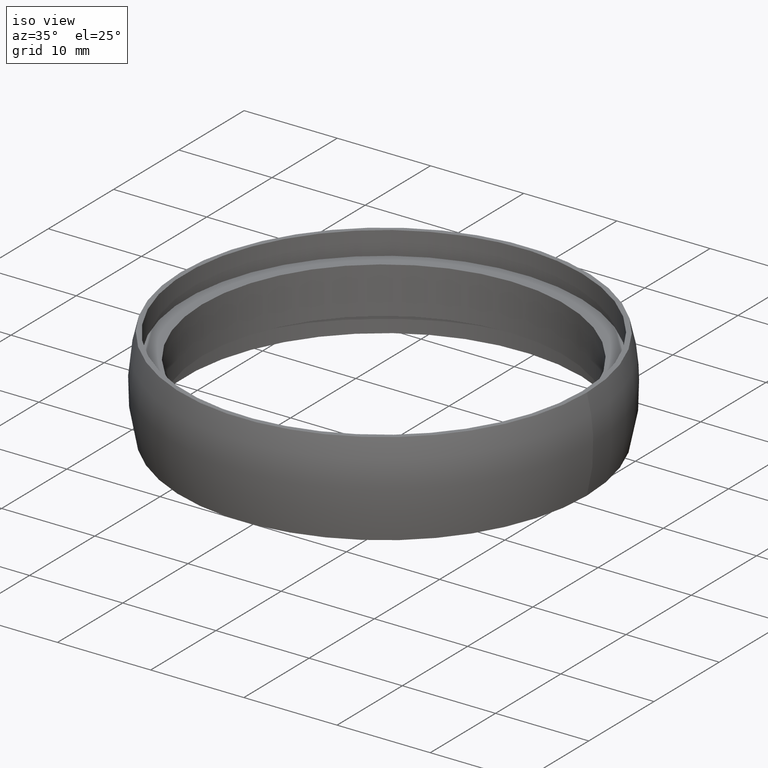
[diagram: clean part render]
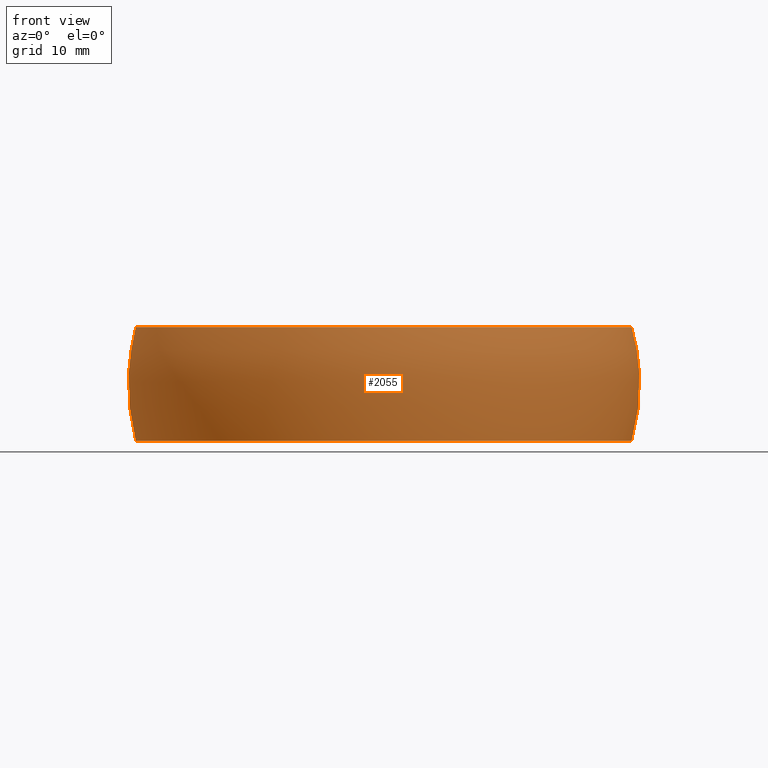
[diagram: tour spotlight — one face highlighted and labeled with its STEP entity id]
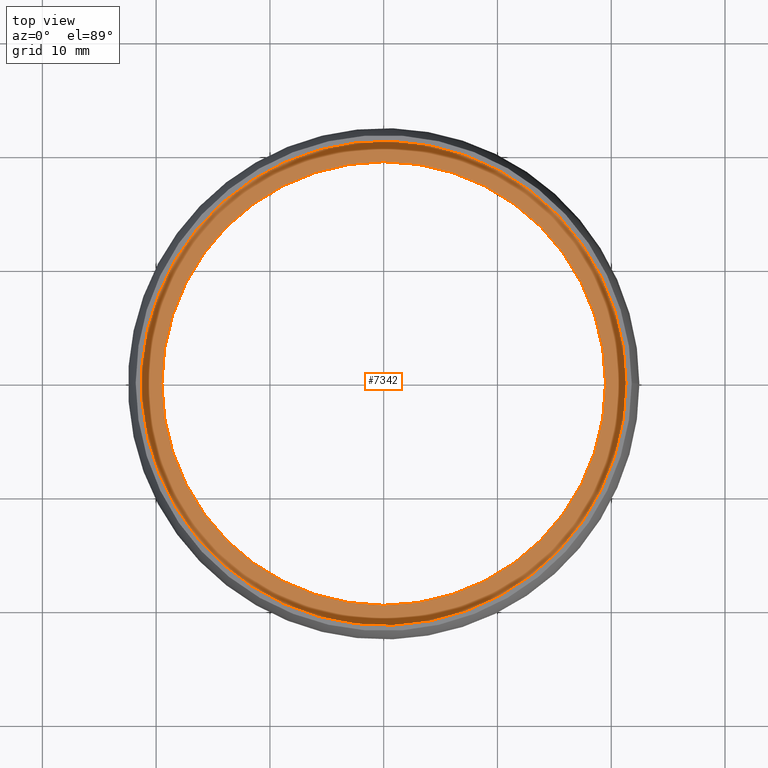
[diagram: tour spotlight — one face highlighted and labeled with its STEP entity id]
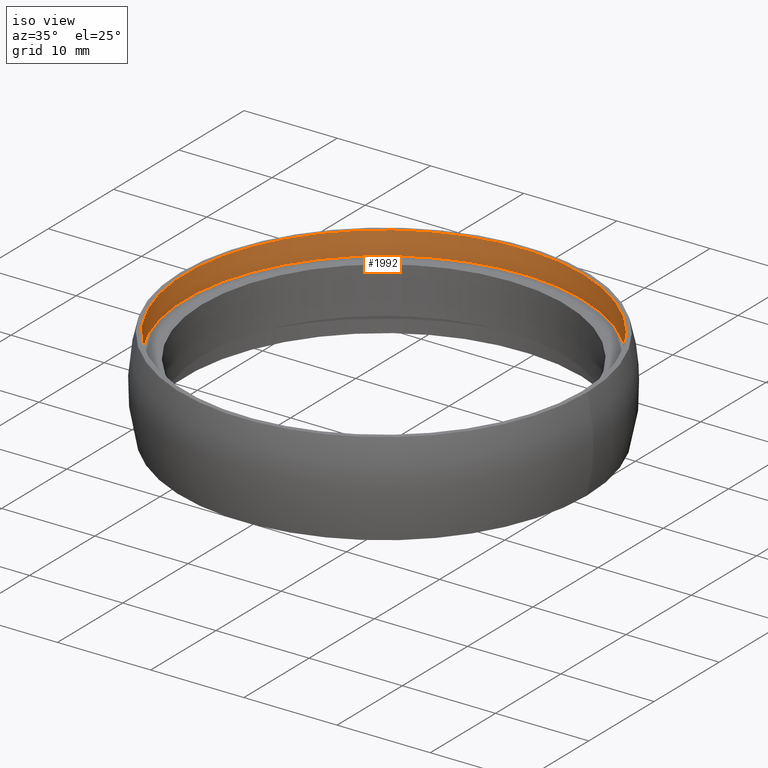
[diagram: tour spotlight — one face highlighted and labeled with its STEP entity id]
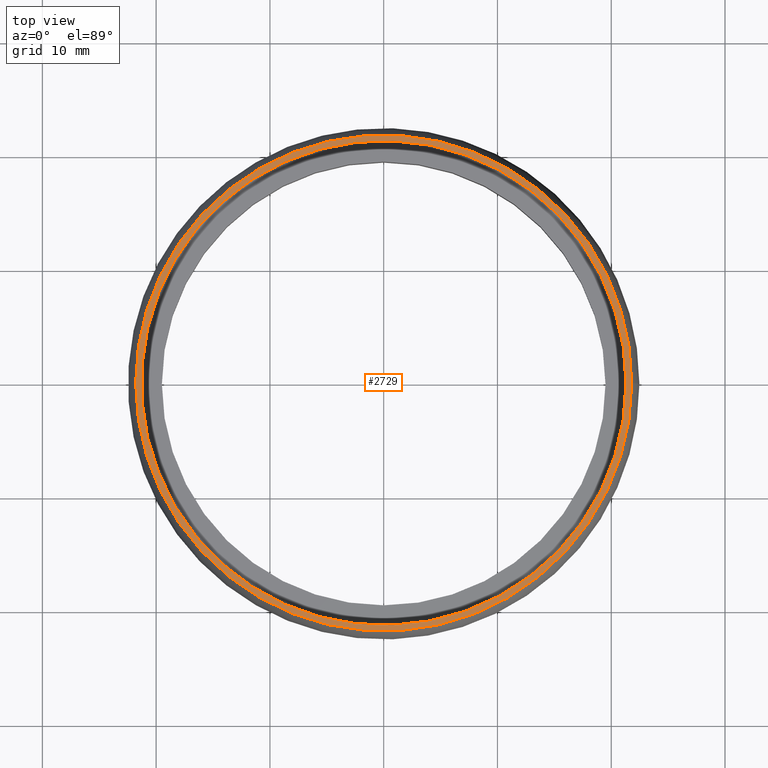
[diagram: tour spotlight — one face highlighted and labeled with its STEP entity id]
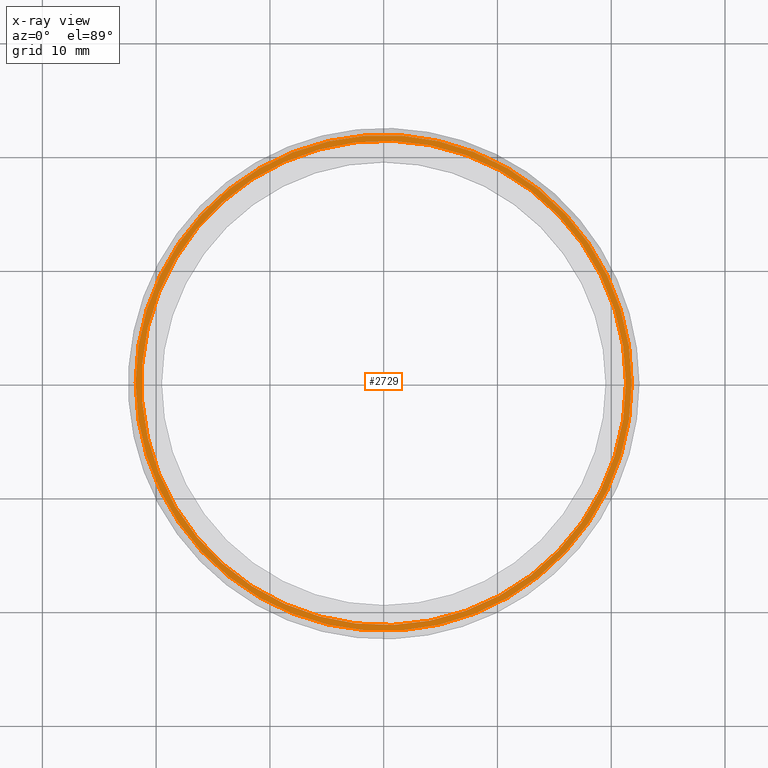
[diagram: x-ray of the same camera — body ghosted, this tour face saturated]
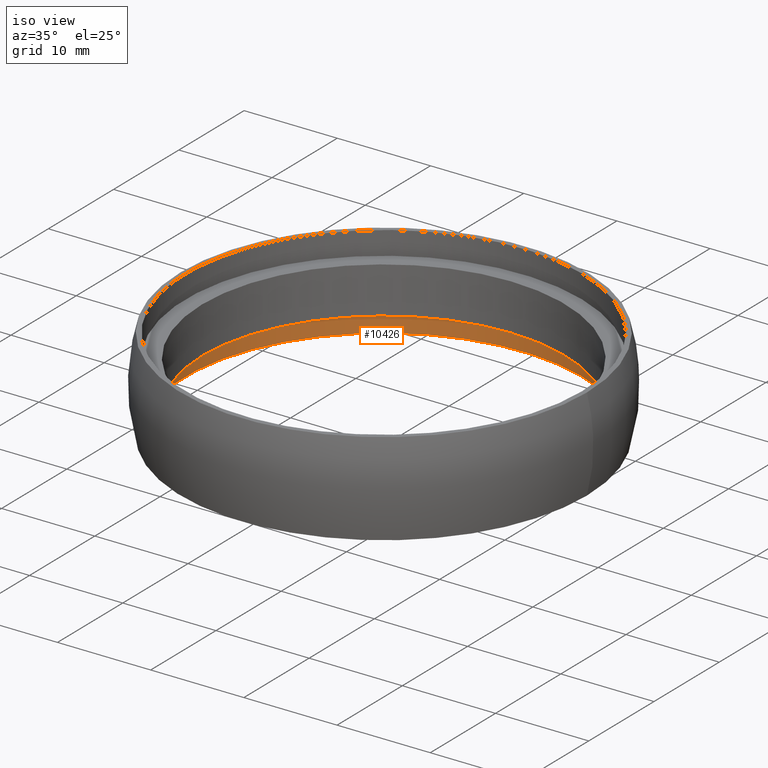
[diagram: tour spotlight — one face highlighted and labeled with its STEP entity id]
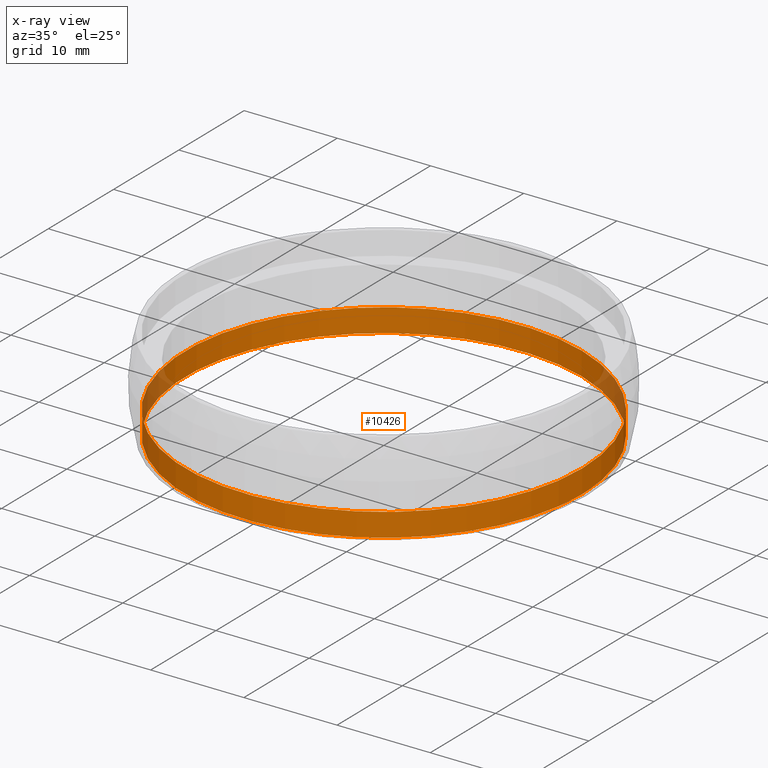
[diagram: x-ray of the same camera — body ghosted, this tour face saturated]
A machine part: a face-by-face anatomy tour. The part has 267 B-rep faces; the first image is the clean iso view, then the 5 largest visible faces are spotlighted one at a time (largest first), each with its STEP entity span.

Face 1 — front view, entity #2055. In plain terms, the highlighted toroidal blend (fillet) surface has major radius 4.2929 mm and minor (blend) radius 18.2071 mm.
Definition (entity closure, byte-faithful):
#222 = VERTEX_POINT ( 'NONE', #1520 ) ;
#308 = TOROIDAL_SURFACE ( 'NONE', #5819, 4.292857142857122300, 18.20714285714287700 ) ;
#777 = CIRCLE ( 'NONE', #1718, 21.80000000000000100 ) ;
#1006 = DIRECTION ( 'NONE',  ( -0.0000000000000000000, -0.0000000000000000000, 1.000000000000000000 ) ) ;
#1520 = CARTESIAN_POINT ( 'NONE',  ( 21.80000000000000100, 0.0000000000000000000, 5.000000000000000900 ) ) ;
#1558 = CARTESIAN_POINT ( 'NONE',  ( 21.80000000000000100, 0.0000000000000000000, -5.000000000000000000 ) ) ;
#1718 = AXIS2_PLACEMENT_3D ( 'NONE', #3808, #1006, #4728 ) ;
#1818 = DIRECTION ( 'NONE',  ( 1.000000000000000000, 0.0000000000000000000, 0.0000000000000000000 ) ) ;
#2055 = ADVANCED_FACE ( 'NONE', ( #11576, #8915 ), #308, .T. ) ;
#3520 = DIRECTION ( 'NONE',  ( -0.0000000000000000000, -0.0000000000000000000, 1.000000000000000000 ) ) ;
#3808 = CARTESIAN_POINT ( 'NONE',  ( 0.0000000000000000000, 0.0000000000000000000, 5.000000000000000900 ) ) ;
#4079 = CIRCLE ( 'NONE', #11352, 21.80000000000000100 ) ;
#4728 = DIRECTION ( 'NONE',  ( 1.000000000000000000, 0.0000000000000000000, 0.0000000000000000000 ) ) ;
#5734 = EDGE_CURVE ( 'NONE', #11357, #11357, #4079, .T. ) ;
#5819 = AXIS2_PLACEMENT_3D ( 'NONE', #7914, #3520, #10768 ) ;
#6187 = DIRECTION ( 'NONE',  ( -0.0000000000000000000, -0.0000000000000000000, 1.000000000000000000 ) ) ;
#7245 = CARTESIAN_POINT ( 'NONE',  ( 0.0000000000000000000, 0.0000000000000000000, -5.000000000000000000 ) ) ;
#7914 = CARTESIAN_POINT ( 'NONE',  ( 0.0000000000000000000, 0.0000000000000000000, 0.0000000000000000000 ) ) ;
#8507 = EDGE_LOOP ( 'NONE', ( #10063 ) ) ;
#8915 = FACE_OUTER_BOUND ( 'NONE', #11132, .T. ) ;
#9384 = ORIENTED_EDGE ( 'NONE', *, *, #5734, .T. ) ;
#10063 = ORIENTED_EDGE ( 'NONE', *, *, #10605, .F. ) ;
#10605 = EDGE_CURVE ( 'NONE', #222, #222, #777, .T. ) ;
#10768 = DIRECTION ( 'NONE',  ( 1.000000000000000000, 0.0000000000000000000, 0.0000000000000000000 ) ) ;
#11132 = EDGE_LOOP ( 'NONE', ( #9384 ) ) ;
#11352 = AXIS2_PLACEMENT_3D ( 'NONE', #7245, #6187, #1818 ) ;
#11357 = VERTEX_POINT ( 'NONE', #1558 ) ;
#11576 = FACE_OUTER_BOUND ( 'NONE', #8507, .T. ) ;

Face 2 — top view, entity #7342. In plain terms, the highlighted planar face has unit normal (0, 0, -1).
Definition (entity closure, byte-faithful):
#545 = FACE_BOUND ( 'NONE', #7876, .T. ) ;
#906 = DIRECTION ( 'NONE',  ( 1.000000000000000000, 0.0000000000000000000, 0.0000000000000000000 ) ) ;
#2817 = DIRECTION ( 'NONE',  ( -1.000000000000000000, 0.0000000000000000000, -0.0000000000000000000 ) ) ;
#3045 = CARTESIAN_POINT ( 'NONE',  ( 0.0000000000000000000, 21.30000000000000100, 2.500000000000000400 ) ) ;
#3473 = DIRECTION ( 'NONE',  ( 1.000000000000000000, 0.0000000000000000000, 0.0000000000000000000 ) ) ;
#3605 = VERTEX_POINT ( 'NONE', #9694 ) ;
#3906 = CIRCLE ( 'NONE', #10023, 21.30000000000000100 ) ;
#4577 = ORIENTED_EDGE ( 'NONE', *, *, #7976, .T. ) ;
#5106 = ORIENTED_EDGE ( 'NONE', *, *, #6949, .F. ) ;
#5444 = CARTESIAN_POINT ( 'NONE',  ( 0.0000000000000000000, 0.0000000000000000000, 2.500000000000000400 ) ) ;
#6279 = DIRECTION ( 'NONE',  ( -0.0000000000000000000, -0.0000000000000000000, 1.000000000000000000 ) ) ;
#6949 = EDGE_CURVE ( 'NONE', #3605, #3605, #11254, .T. ) ;
#7020 = FACE_OUTER_BOUND ( 'NONE', #7561, .T. ) ;
#7342 = ADVANCED_FACE ( 'NONE', ( #545, #7020 ), #10414, .F. ) ;
#7439 = AXIS2_PLACEMENT_3D ( 'NONE', #3045, #8227, #2817 ) ;
#7561 = EDGE_LOOP ( 'NONE', ( #4577 ) ) ;
#7766 = CARTESIAN_POINT ( 'NONE',  ( 21.30000000000000100, 0.0000000000000000000, 2.500000000000000400 ) ) ;
#7876 = EDGE_LOOP ( 'NONE', ( #5106 ) ) ;
#7976 = EDGE_CURVE ( 'NONE', #9827, #9827, #3906, .T. ) ;
#8227 = DIRECTION ( 'NONE',  ( 0.0000000000000000000, 0.0000000000000000000, -1.000000000000000000 ) ) ;
#9630 = DIRECTION ( 'NONE',  ( -0.0000000000000000000, -0.0000000000000000000, 1.000000000000000000 ) ) ;
#9694 = CARTESIAN_POINT ( 'NONE',  ( 19.50000000000000000, 0.0000000000000000000, 2.500000000000000000 ) ) ;
#9715 = AXIS2_PLACEMENT_3D ( 'NONE', #11697, #9630, #906 ) ;
#9827 = VERTEX_POINT ( 'NONE', #7766 ) ;
#10023 = AXIS2_PLACEMENT_3D ( 'NONE', #5444, #6279, #3473 ) ;
#10414 = PLANE ( 'NONE',  #7439 ) ;
#11254 = CIRCLE ( 'NONE', #9715, 19.50000000000000000 ) ;
#11697 = CARTESIAN_POINT ( 'NONE',  ( 0.0000000000000000000, 0.0000000000000000000, 2.500000000000000000 ) ) ;

Face 3 — iso view, entity #1992. In plain terms, the highlighted cylindrical surface (bore or boss wall) has radius 21.3 mm, axis along (-0, -0, 1).
Definition (entity closure, byte-faithful):
#1633 = VERTEX_POINT ( 'NONE', #5034 ) ;
#1992 = ADVANCED_FACE ( 'NONE', ( #4685, #9490 ), #7210, .F. ) ;
#3407 = EDGE_LOOP ( 'NONE', ( #4991 ) ) ;
#3473 = DIRECTION ( 'NONE',  ( 1.000000000000000000, 0.0000000000000000000, 0.0000000000000000000 ) ) ;
#3620 = AXIS2_PLACEMENT_3D ( 'NONE', #6909, #6206, #10612 ) ;
#3906 = CIRCLE ( 'NONE', #10023, 21.30000000000000100 ) ;
#4685 = FACE_OUTER_BOUND ( 'NONE', #3407, .T. ) ;
#4991 = ORIENTED_EDGE ( 'NONE', *, *, #7976, .F. ) ;
#5034 = CARTESIAN_POINT ( 'NONE',  ( 21.30000000000000100, 0.0000000000000000000, 5.000000000000000000 ) ) ;
#5444 = CARTESIAN_POINT ( 'NONE',  ( 0.0000000000000000000, 0.0000000000000000000, 2.500000000000000400 ) ) ;
#6206 = DIRECTION ( 'NONE',  ( -0.0000000000000000000, -0.0000000000000000000, 1.000000000000000000 ) ) ;
#6279 = DIRECTION ( 'NONE',  ( -0.0000000000000000000, -0.0000000000000000000, 1.000000000000000000 ) ) ;
#6909 = CARTESIAN_POINT ( 'NONE',  ( 0.0000000000000000000, 0.0000000000000000000, 0.0000000000000000000 ) ) ;
#7210 = CYLINDRICAL_SURFACE ( 'NONE', #3620, 21.30000000000000100 ) ;
#7457 = CIRCLE ( 'NONE', #10695, 21.30000000000000100 ) ;
#7766 = CARTESIAN_POINT ( 'NONE',  ( 21.30000000000000100, 0.0000000000000000000, 2.500000000000000400 ) ) ;
#7947 = DIRECTION ( 'NONE',  ( 1.000000000000000000, 0.0000000000000000000, 0.0000000000000000000 ) ) ;
#7976 = EDGE_CURVE ( 'NONE', #9827, #9827, #3906, .T. ) ;
#8765 = DIRECTION ( 'NONE',  ( -0.0000000000000000000, -0.0000000000000000000, 1.000000000000000000 ) ) ;
#9490 = FACE_OUTER_BOUND ( 'NONE', #11045, .T. ) ;
#9827 = VERTEX_POINT ( 'NONE', #7766 ) ;
#10023 = AXIS2_PLACEMENT_3D ( 'NONE', #5444, #6279, #3473 ) ;
#10078 = ORIENTED_EDGE ( 'NONE', *, *, #10196, .T. ) ;
#10196 = EDGE_CURVE ( 'NONE', #1633, #1633, #7457, .T. ) ;
#10612 = DIRECTION ( 'NONE',  ( 1.000000000000000000, 0.0000000000000000000, 0.0000000000000000000 ) ) ;
#10695 = AXIS2_PLACEMENT_3D ( 'NONE', #11436, #8765, #7947 ) ;
#11045 = EDGE_LOOP ( 'NONE', ( #10078 ) ) ;
#11436 = CARTESIAN_POINT ( 'NONE',  ( 0.0000000000000000000, 0.0000000000000000000, 5.000000000000000000 ) ) ;

Face 4 — top view, entity #2729. An x-ray twin of the same camera follows (body ghosted, this face saturated) — the face is partly hidden behind the body. In plain terms, the highlighted planar face has unit normal (0, 0, -1).
Definition (entity closure, byte-faithful):
#222 = VERTEX_POINT ( 'NONE', #1520 ) ;
#777 = CIRCLE ( 'NONE', #1718, 21.80000000000000100 ) ;
#1006 = DIRECTION ( 'NONE',  ( -0.0000000000000000000, -0.0000000000000000000, 1.000000000000000000 ) ) ;
#1520 = CARTESIAN_POINT ( 'NONE',  ( 21.80000000000000100, 0.0000000000000000000, 5.000000000000000900 ) ) ;
#1633 = VERTEX_POINT ( 'NONE', #5034 ) ;
#1718 = AXIS2_PLACEMENT_3D ( 'NONE', #3808, #1006, #4728 ) ;
#2729 = ADVANCED_FACE ( 'NONE', ( #6790, #5233 ), #3750, .F. ) ;
#2938 = AXIS2_PLACEMENT_3D ( 'NONE', #10076, #7456, #4703 ) ;
#3206 = ORIENTED_EDGE ( 'NONE', *, *, #10196, .F. ) ;
#3750 = PLANE ( 'NONE',  #2938 ) ;
#3808 = CARTESIAN_POINT ( 'NONE',  ( 0.0000000000000000000, 0.0000000000000000000, 5.000000000000000900 ) ) ;
#4703 = DIRECTION ( 'NONE',  ( -1.000000000000000000, 0.0000000000000000000, -0.0000000000000000000 ) ) ;
#4728 = DIRECTION ( 'NONE',  ( 1.000000000000000000, 0.0000000000000000000, 0.0000000000000000000 ) ) ;
#5034 = CARTESIAN_POINT ( 'NONE',  ( 21.30000000000000100, 0.0000000000000000000, 5.000000000000000000 ) ) ;
#5233 = FACE_OUTER_BOUND ( 'NONE', #9442, .T. ) ;
#6790 = FACE_BOUND ( 'NONE', #8852, .T. ) ;
#7456 = DIRECTION ( 'NONE',  ( 0.0000000000000000000, 0.0000000000000000000, -1.000000000000000000 ) ) ;
#7457 = CIRCLE ( 'NONE', #10695, 21.30000000000000100 ) ;
#7947 = DIRECTION ( 'NONE',  ( 1.000000000000000000, 0.0000000000000000000, 0.0000000000000000000 ) ) ;
#8765 = DIRECTION ( 'NONE',  ( -0.0000000000000000000, -0.0000000000000000000, 1.000000000000000000 ) ) ;
#8852 = EDGE_LOOP ( 'NONE', ( #3206 ) ) ;
#9442 = EDGE_LOOP ( 'NONE', ( #10740 ) ) ;
#10076 = CARTESIAN_POINT ( 'NONE',  ( 0.0000000000000000000, 21.30000000000000100, 5.000000000000000900 ) ) ;
#10196 = EDGE_CURVE ( 'NONE', #1633, #1633, #7457, .T. ) ;
#10605 = EDGE_CURVE ( 'NONE', #222, #222, #777, .T. ) ;
#10695 = AXIS2_PLACEMENT_3D ( 'NONE', #11436, #8765, #7947 ) ;
#10740 = ORIENTED_EDGE ( 'NONE', *, *, #10605, .T. ) ;
#11436 = CARTESIAN_POINT ( 'NONE',  ( 0.0000000000000000000, 0.0000000000000000000, 5.000000000000000000 ) ) ;

Face 5 — iso view, entity #10426. An x-ray twin of the same camera follows (body ghosted, this face saturated) — the face is partly hidden behind the body. In plain terms, the highlighted cylindrical surface (bore or boss wall) has radius 21.3 mm, axis along (-0, -0, 1).
Definition (entity closure, byte-faithful):
#292 = AXIS2_PLACEMENT_3D ( 'NONE', #8399, #5843, #11298 ) ;
#885 = EDGE_CURVE ( 'NONE', #11223, #11223, #2180, .T. ) ;
#1699 = DIRECTION ( 'NONE',  ( -0.0000000000000000000, -0.0000000000000000000, 1.000000000000000000 ) ) ;
#1924 = CYLINDRICAL_SURFACE ( 'NONE', #292, 21.30000000000000100 ) ;
#2180 = CIRCLE ( 'NONE', #7930, 21.30000000000000100 ) ;
#2403 = CARTESIAN_POINT ( 'NONE',  ( 21.30000000000000100, 0.0000000000000000000, -2.500000000000000400 ) ) ;
#2714 = CARTESIAN_POINT ( 'NONE',  ( 0.0000000000000000000, 0.0000000000000000000, -2.500000000000000400 ) ) ;
#4324 = DIRECTION ( 'NONE',  ( -0.0000000000000000000, -0.0000000000000000000, 1.000000000000000000 ) ) ;
#5843 = DIRECTION ( 'NONE',  ( -0.0000000000000000000, -0.0000000000000000000, 1.000000000000000000 ) ) ;
#5867 = FACE_OUTER_BOUND ( 'NONE', #8651, .T. ) ;
#6171 = DIRECTION ( 'NONE',  ( 1.000000000000000000, 0.0000000000000000000, 0.0000000000000000000 ) ) ;
#6258 = ORIENTED_EDGE ( 'NONE', *, *, #9016, .F. ) ;
#6913 = AXIS2_PLACEMENT_3D ( 'NONE', #9850, #4324, #6171 ) ;
#6999 = VERTEX_POINT ( 'NONE', #8780 ) ;
#7137 = DIRECTION ( 'NONE',  ( 1.000000000000000000, 0.0000000000000000000, 0.0000000000000000000 ) ) ;
#7930 = AXIS2_PLACEMENT_3D ( 'NONE', #2714, #1699, #7137 ) ;
#8007 = FACE_OUTER_BOUND ( 'NONE', #9523, .T. ) ;
#8399 = CARTESIAN_POINT ( 'NONE',  ( 0.0000000000000000000, 0.0000000000000000000, 0.0000000000000000000 ) ) ;
#8651 = EDGE_LOOP ( 'NONE', ( #6258 ) ) ;
#8780 = CARTESIAN_POINT ( 'NONE',  ( 21.30000000000000100, 0.0000000000000000000, -5.000000000000000000 ) ) ;
#9016 = EDGE_CURVE ( 'NONE', #6999, #6999, #9410, .T. ) ;
#9410 = CIRCLE ( 'NONE', #6913, 21.30000000000000100 ) ;
#9523 = EDGE_LOOP ( 'NONE', ( #10751 ) ) ;
#9850 = CARTESIAN_POINT ( 'NONE',  ( 0.0000000000000000000, 0.0000000000000000000, -5.000000000000000000 ) ) ;
#10426 = ADVANCED_FACE ( 'NONE', ( #5867, #8007 ), #1924, .F. ) ;
#10751 = ORIENTED_EDGE ( 'NONE', *, *, #885, .T. ) ;
#11223 = VERTEX_POINT ( 'NONE', #2403 ) ;
#11298 = DIRECTION ( 'NONE',  ( 1.000000000000000000, 0.0000000000000000000, 0.0000000000000000000 ) ) ;